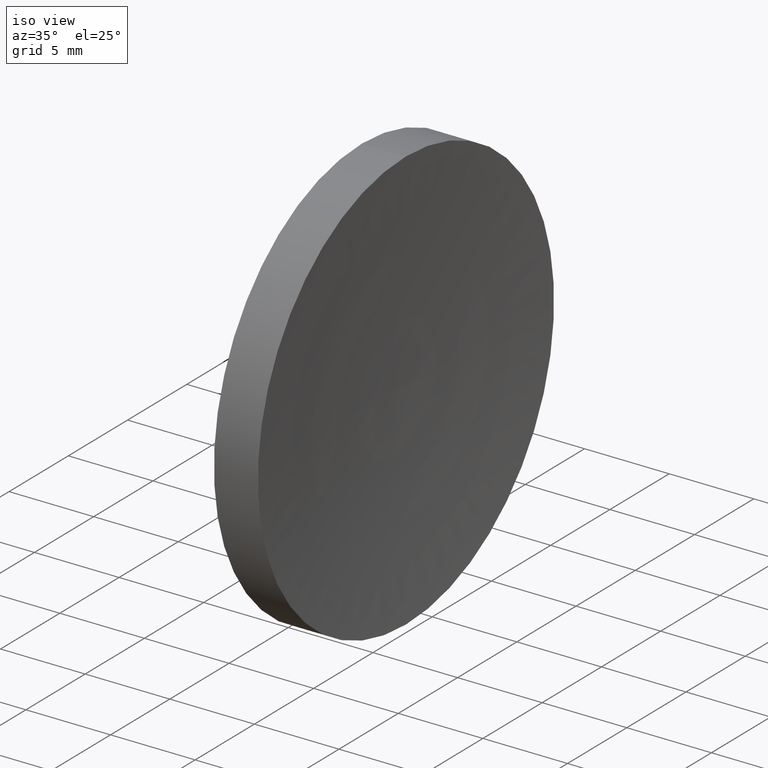
[diagram: clean part render]
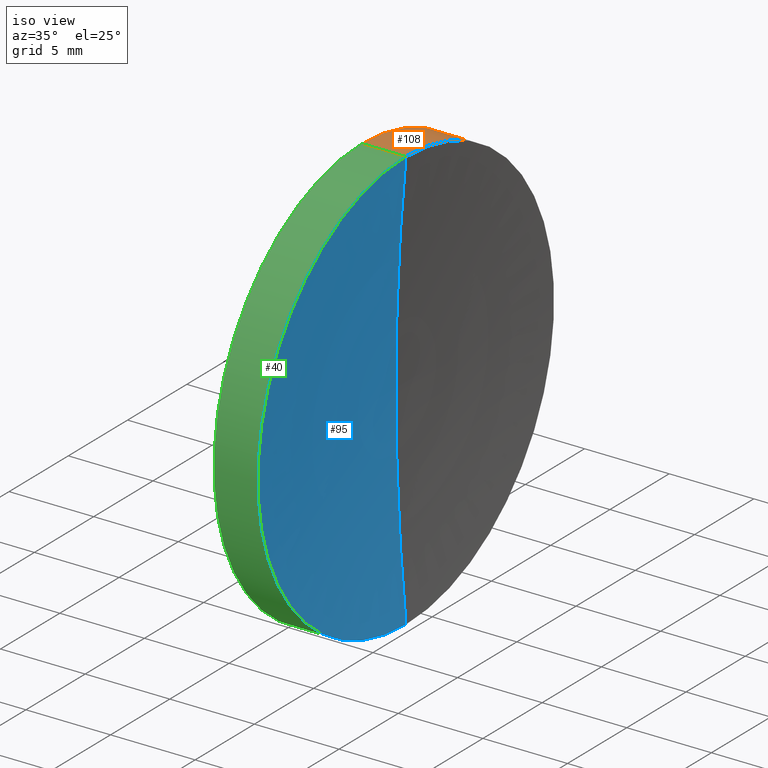
[diagram: same view with three faces highlighted in distinct colors, each labeled with its STEP entity id]
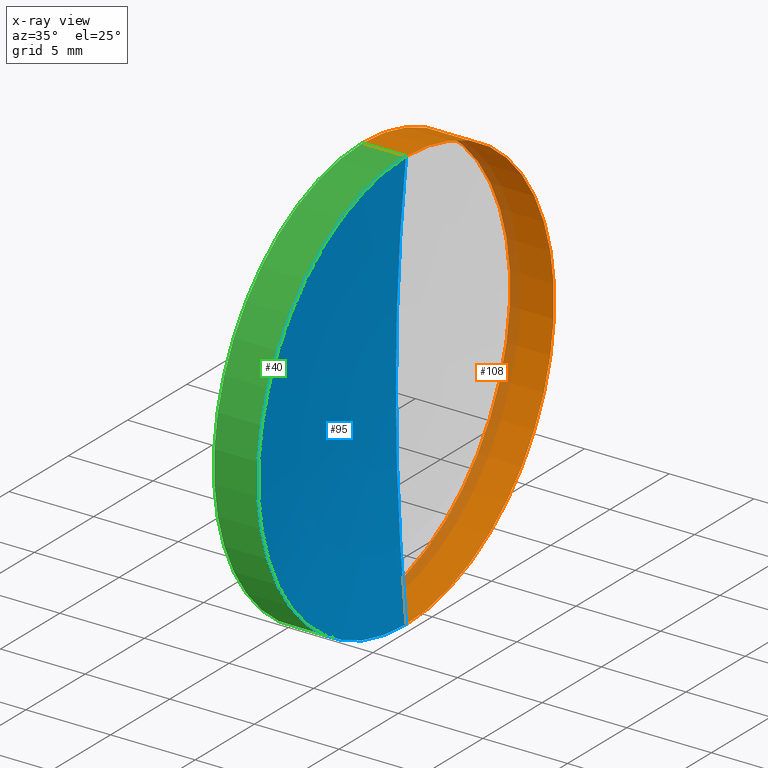
[diagram: x-ray of the same camera — body ghosted, the three highlighted faces saturated]
A machine part, iso view with three faces highlighted in distinct colors.
The next image is the same camera in x-ray (body ghosted, the three faces saturated) — at least one of them is partly hidden behind the body in this view.
Their STEP definitions:

[orange] entity #108 — the highlighted cylindrical surface (partial cylindrical patch) has radius 12.5 mm, axis along (-1, -0, -0).
#2 = VECTOR ( 'NONE', #149, 1000.000000000000000 ) ;
#9 = EDGE_CURVE ( 'NONE', #34, #128, #107, .T. ) ;
#27 = AXIS2_PLACEMENT_3D ( 'NONE', #92, #78, #77 ) ;
#29 = EDGE_LOOP ( 'NONE', ( #140, #113, #116, #126 ) ) ;
#30 = CARTESIAN_POINT ( 'NONE',  ( 60.12458236903478300, 32.61076812922678400, -12.49999999999994100 ) ) ;
#31 = EDGE_CURVE ( 'NONE', #80, #93, #164, .T. ) ;
#34 = VERTEX_POINT ( 'NONE', #30 ) ;
#35 = EDGE_CURVE ( 'NONE', #80, #34, #122, .T. ) ;
#38 = DIRECTION ( 'NONE',  ( 0.0000000000000000000, 0.0000000000000000000, 1.000000000000000000 ) ) ;
#44 = DIRECTION ( 'NONE',  ( -1.000000000000000000, -0.0000000000000000000, -0.0000000000000000000 ) ) ;
#45 = FACE_OUTER_BOUND ( 'NONE', #29, .T. ) ;
#52 = CARTESIAN_POINT ( 'NONE',  ( 57.53233705252611700, 32.61076812922678400, 0.0000000000000000000 ) ) ;
#58 = CYLINDRICAL_SURFACE ( 'NONE', #27, 12.49999999999999600 ) ;
#67 = CARTESIAN_POINT ( 'NONE',  ( 60.12458236903478300, 32.61076812922678400, 0.0000000000000000000 ) ) ;
#68 = CARTESIAN_POINT ( 'NONE',  ( 56.10091507999716500, 32.61076812922678400, -12.49999999999999600 ) ) ;
#77 = DIRECTION ( 'NONE',  ( 0.0000000000000000000, 0.0000000000000000000, 1.000000000000000000 ) ) ;
#78 = DIRECTION ( 'NONE',  ( -1.000000000000000000, -0.0000000000000000000, -0.0000000000000000000 ) ) ;
#80 = VERTEX_POINT ( 'NONE', #111 ) ;
#92 = CARTESIAN_POINT ( 'NONE',  ( 56.10091507999716500, 32.61076812922678400, 0.0000000000000000000 ) ) ;
#93 = VERTEX_POINT ( 'NONE', #139 ) ;
#96 = DIRECTION ( 'NONE',  ( -1.000000000000000000, -0.0000000000000000000, -0.0000000000000000000 ) ) ;
#97 = CIRCLE ( 'NONE', #110, 12.49999999999999600 ) ;
#107 = LINE ( 'NONE', #68, #2 ) ;
#108 = ADVANCED_FACE ( 'NONE', ( #45 ), #58, .T. ) ;
#110 = AXIS2_PLACEMENT_3D ( 'NONE', #52, #143, #38 ) ;
#111 = CARTESIAN_POINT ( 'NONE',  ( 60.12458236903478300, 32.61076812922678400, 12.49999999999994100 ) ) ;
#112 = DIRECTION ( 'NONE',  ( 0.0000000000000000000, 0.0000000000000000000, 1.000000000000000000 ) ) ;
#113 = ORIENTED_EDGE ( 'NONE', *, *, #9, .T. ) ;
#116 = ORIENTED_EDGE ( 'NONE', *, *, #133, .F. ) ;
#121 = CARTESIAN_POINT ( 'NONE',  ( 57.53233705252611700, 32.61076812922678400, -12.49999999999999600 ) ) ;
#122 = CIRCLE ( 'NONE', #142, 12.49999999999999600 ) ;
#126 = ORIENTED_EDGE ( 'NONE', *, *, #31, .F. ) ;
#128 = VERTEX_POINT ( 'NONE', #121 ) ;
#133 = EDGE_CURVE ( 'NONE', #93, #128, #97, .T. ) ;
#134 = VECTOR ( 'NONE', #96, 1000.000000000000000 ) ;
#139 = CARTESIAN_POINT ( 'NONE',  ( 57.53233705252611700, 32.61076812922678400, 12.49999999999999600 ) ) ;
#140 = ORIENTED_EDGE ( 'NONE', *, *, #35, .T. ) ;
#142 = AXIS2_PLACEMENT_3D ( 'NONE', #67, #44, #112 ) ;
#143 = DIRECTION ( 'NONE',  ( -1.000000000000000000, -0.0000000000000000000, -0.0000000000000000000 ) ) ;
#147 = CARTESIAN_POINT ( 'NONE',  ( 56.10091507999716500, 32.61076812922678400, 12.49999999999999600 ) ) ;
#149 = DIRECTION ( 'NONE',  ( -1.000000000000000000, -0.0000000000000000000, -0.0000000000000000000 ) ) ;
#164 = LINE ( 'NONE', #147, #134 ) ;

[blue] entity #95 — the highlighted toroidal blend (fillet) surface has major radius 0.1459 mm and minor (blend) radius 129.13 mm.
#3 = TOROIDAL_SURFACE ( 'NONE', #25, 0.1459030683174933300, 129.1300000000000000 ) ;
#14 = CIRCLE ( 'NONE', #154, 12.49999999999999600 ) ;
#17 = DIRECTION ( 'NONE',  ( 0.0000000000000000000, -1.074714458903001400E-016, 1.000000000000000000 ) ) ;
#20 = CARTESIAN_POINT ( 'NONE',  ( 188.6622546250803800, 32.61076812922678400, -0.1459030683174933300 ) ) ;
#22 = DIRECTION ( 'NONE',  ( 0.0000000000000000000, 0.0000000000000000000, -1.000000000000000000 ) ) ;
#25 = AXIS2_PLACEMENT_3D ( 'NONE', #125, #123, #74 ) ;
#30 = CARTESIAN_POINT ( 'NONE',  ( 60.12458236903478300, 32.61076812922678400, -12.49999999999994100 ) ) ;
#34 = VERTEX_POINT ( 'NONE', #30 ) ;
#39 = EDGE_CURVE ( 'NONE', #34, #61, #84, .T. ) ;
#42 = CARTESIAN_POINT ( 'NONE',  ( 59.53233705252613800, 32.61076812922678400, 0.0000000000000000000 ) ) ;
#57 = DIRECTION ( 'NONE',  ( -1.000000000000000000, -0.0000000000000000000, -0.0000000000000000000 ) ) ;
#59 = CARTESIAN_POINT ( 'NONE',  ( 188.6622546250803800, 32.61076812922678400, 0.1459030683174933300 ) ) ;
#60 = AXIS2_PLACEMENT_3D ( 'NONE', #20, #159, #17 ) ;
#61 = VERTEX_POINT ( 'NONE', #42 ) ;
#69 = DIRECTION ( 'NONE',  ( 0.0000000000000000000, 0.0000000000000000000, 1.000000000000000000 ) ) ;
#73 = ORIENTED_EDGE ( 'NONE', *, *, #39, .T. ) ;
#74 = DIRECTION ( 'NONE',  ( 0.0000000000000000000, 0.0000000000000000000, 1.000000000000000000 ) ) ;
#80 = VERTEX_POINT ( 'NONE', #111 ) ;
#83 = AXIS2_PLACEMENT_3D ( 'NONE', #59, #162, #22 ) ;
#84 = CIRCLE ( 'NONE', #60, 129.1300000000000000 ) ;
#85 = EDGE_CURVE ( 'NONE', #80, #61, #160, .T. ) ;
#87 = EDGE_CURVE ( 'NONE', #34, #80, #14, .T. ) ;
#95 = ADVANCED_FACE ( 'NONE', ( #98 ), #3, .F. ) ;
#98 = FACE_OUTER_BOUND ( 'NONE', #161, .T. ) ;
#111 = CARTESIAN_POINT ( 'NONE',  ( 60.12458236903478300, 32.61076812922678400, 12.49999999999994100 ) ) ;
#115 = ORIENTED_EDGE ( 'NONE', *, *, #87, .F. ) ;
#123 = DIRECTION ( 'NONE',  ( -1.000000000000000000, -0.0000000000000000000, -0.0000000000000000000 ) ) ;
#125 = CARTESIAN_POINT ( 'NONE',  ( 188.6622546250803800, 32.61076812922678400, 0.0000000000000000000 ) ) ;
#151 = CARTESIAN_POINT ( 'NONE',  ( 60.12458236903478300, 32.61076812922678400, 0.0000000000000000000 ) ) ;
#154 = AXIS2_PLACEMENT_3D ( 'NONE', #151, #57, #69 ) ;
#158 = ORIENTED_EDGE ( 'NONE', *, *, #85, .F. ) ;
#159 = DIRECTION ( 'NONE',  ( -0.0000000000000000000, 1.000000000000000000, 1.224646799147353200E-016 ) ) ;
#160 = CIRCLE ( 'NONE', #83, 129.1300000000000000 ) ;
#161 = EDGE_LOOP ( 'NONE', ( #115, #73, #158 ) ) ;
#162 = DIRECTION ( 'NONE',  ( 0.0000000000000000000, -1.000000000000000000, 0.0000000000000000000 ) ) ;

[green] entity #40 — the highlighted cylindrical surface (partial cylindrical patch) has radius 12.5 mm, axis along (-1, -0, -0).
#2 = VECTOR ( 'NONE', #149, 1000.000000000000000 ) ;
#8 = ORIENTED_EDGE ( 'NONE', *, *, #87, .T. ) ;
#9 = EDGE_CURVE ( 'NONE', #34, #128, #107, .T. ) ;
#14 = CIRCLE ( 'NONE', #154, 12.49999999999999600 ) ;
#15 = CARTESIAN_POINT ( 'NONE',  ( 56.10091507999716500, 32.61076812922678400, 0.0000000000000000000 ) ) ;
#16 = ORIENTED_EDGE ( 'NONE', *, *, #70, .F. ) ;
#26 = FACE_OUTER_BOUND ( 'NONE', #48, .T. ) ;
#28 = CYLINDRICAL_SURFACE ( 'NONE', #100, 12.49999999999999600 ) ;
#30 = CARTESIAN_POINT ( 'NONE',  ( 60.12458236903478300, 32.61076812922678400, -12.49999999999994100 ) ) ;
#31 = EDGE_CURVE ( 'NONE', #80, #93, #164, .T. ) ;
#34 = VERTEX_POINT ( 'NONE', #30 ) ;
#40 = ADVANCED_FACE ( 'NONE', ( #26 ), #28, .T. ) ;
#43 = CARTESIAN_POINT ( 'NONE',  ( 57.53233705252611700, 32.61076812922678400, 0.0000000000000000000 ) ) ;
#48 = EDGE_LOOP ( 'NONE', ( #105, #8, #150, #16 ) ) ;
#57 = DIRECTION ( 'NONE',  ( -1.000000000000000000, -0.0000000000000000000, -0.0000000000000000000 ) ) ;
#68 = CARTESIAN_POINT ( 'NONE',  ( 56.10091507999716500, 32.61076812922678400, -12.49999999999999600 ) ) ;
#69 = DIRECTION ( 'NONE',  ( 0.0000000000000000000, 0.0000000000000000000, 1.000000000000000000 ) ) ;
#70 = EDGE_CURVE ( 'NONE', #128, #93, #146, .T. ) ;
#79 = AXIS2_PLACEMENT_3D ( 'NONE', #43, #157, #137 ) ;
#80 = VERTEX_POINT ( 'NONE', #111 ) ;
#87 = EDGE_CURVE ( 'NONE', #34, #80, #14, .T. ) ;
#93 = VERTEX_POINT ( 'NONE', #139 ) ;
#96 = DIRECTION ( 'NONE',  ( -1.000000000000000000, -0.0000000000000000000, -0.0000000000000000000 ) ) ;
#100 = AXIS2_PLACEMENT_3D ( 'NONE', #15, #148, #114 ) ;
#105 = ORIENTED_EDGE ( 'NONE', *, *, #9, .F. ) ;
#107 = LINE ( 'NONE', #68, #2 ) ;
#111 = CARTESIAN_POINT ( 'NONE',  ( 60.12458236903478300, 32.61076812922678400, 12.49999999999994100 ) ) ;
#114 = DIRECTION ( 'NONE',  ( 0.0000000000000000000, 0.0000000000000000000, 1.000000000000000000 ) ) ;
#121 = CARTESIAN_POINT ( 'NONE',  ( 57.53233705252611700, 32.61076812922678400, -12.49999999999999600 ) ) ;
#128 = VERTEX_POINT ( 'NONE', #121 ) ;
#134 = VECTOR ( 'NONE', #96, 1000.000000000000000 ) ;
#137 = DIRECTION ( 'NONE',  ( 0.0000000000000000000, 0.0000000000000000000, 1.000000000000000000 ) ) ;
#139 = CARTESIAN_POINT ( 'NONE',  ( 57.53233705252611700, 32.61076812922678400, 12.49999999999999600 ) ) ;
#146 = CIRCLE ( 'NONE', #79, 12.49999999999999600 ) ;
#147 = CARTESIAN_POINT ( 'NONE',  ( 56.10091507999716500, 32.61076812922678400, 12.49999999999999600 ) ) ;
#148 = DIRECTION ( 'NONE',  ( -1.000000000000000000, -0.0000000000000000000, -0.0000000000000000000 ) ) ;
#149 = DIRECTION ( 'NONE',  ( -1.000000000000000000, -0.0000000000000000000, -0.0000000000000000000 ) ) ;
#150 = ORIENTED_EDGE ( 'NONE', *, *, #31, .T. ) ;
#151 = CARTESIAN_POINT ( 'NONE',  ( 60.12458236903478300, 32.61076812922678400, 0.0000000000000000000 ) ) ;
#154 = AXIS2_PLACEMENT_3D ( 'NONE', #151, #57, #69 ) ;
#157 = DIRECTION ( 'NONE',  ( -1.000000000000000000, -0.0000000000000000000, -0.0000000000000000000 ) ) ;
#164 = LINE ( 'NONE', #147, #134 ) ;